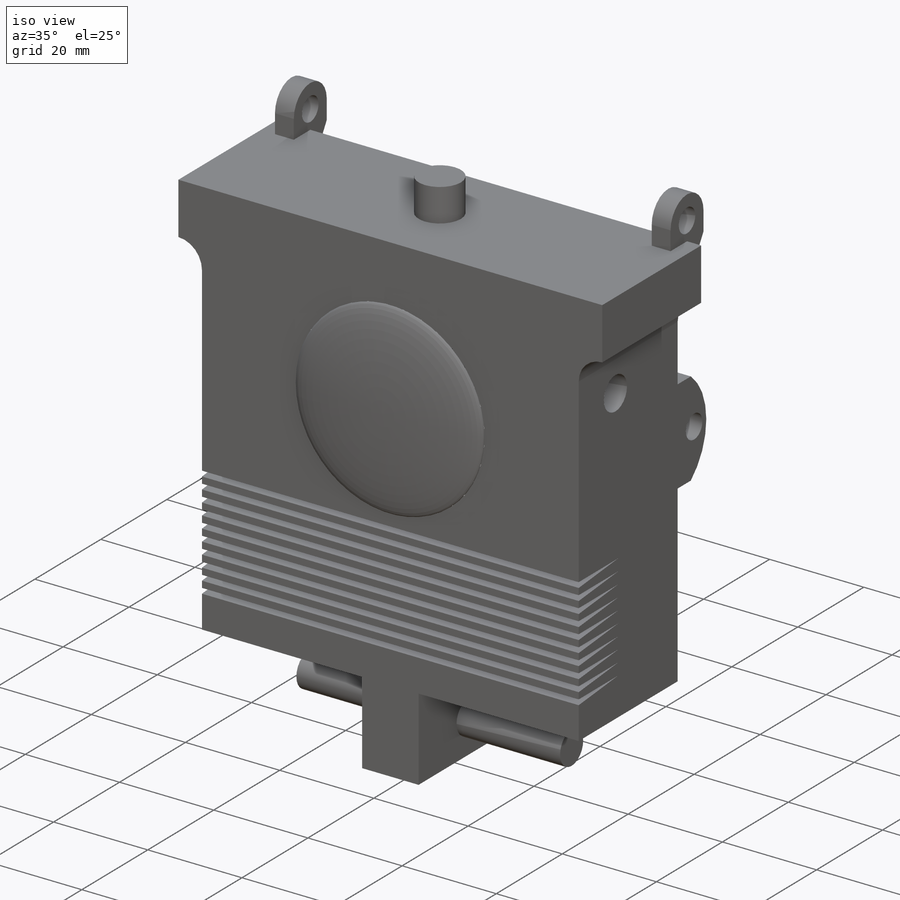
[diagram: iso view]
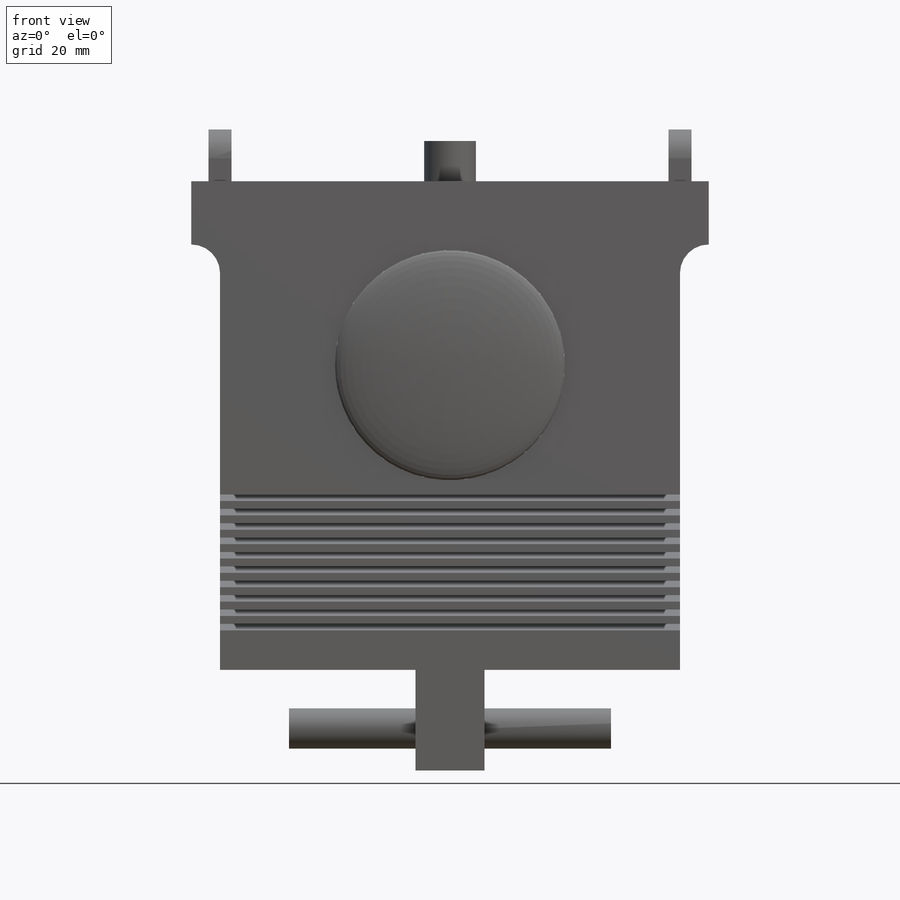
[diagram: front view]
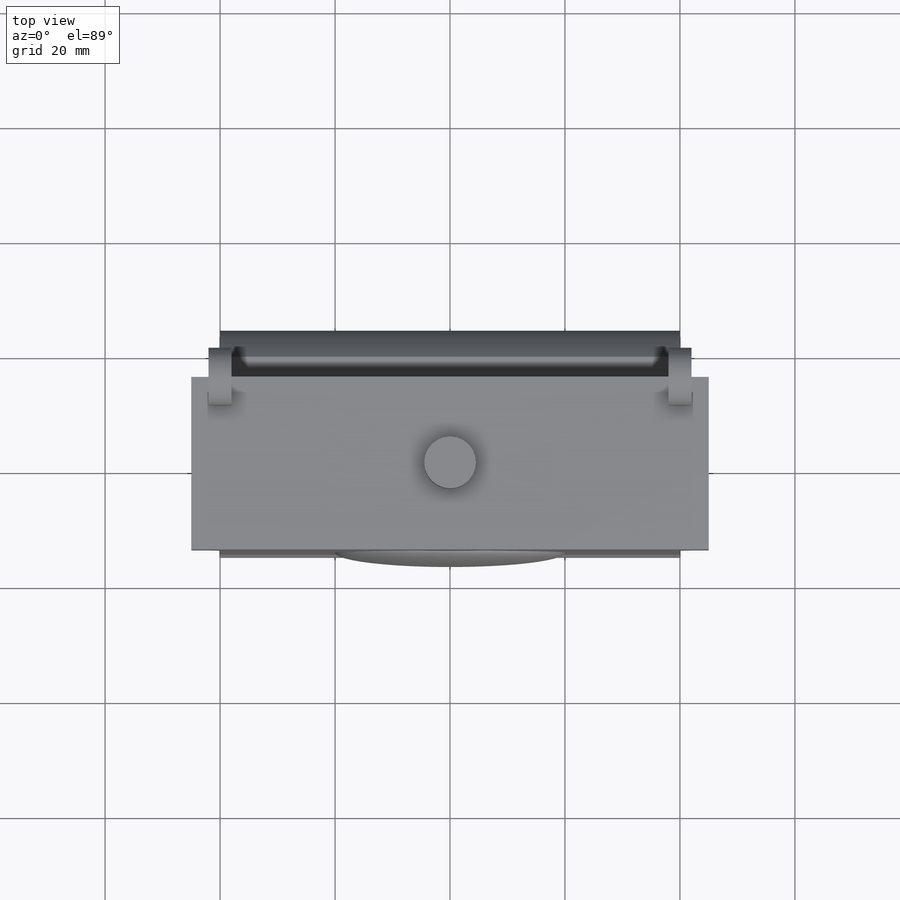
[diagram: top view]
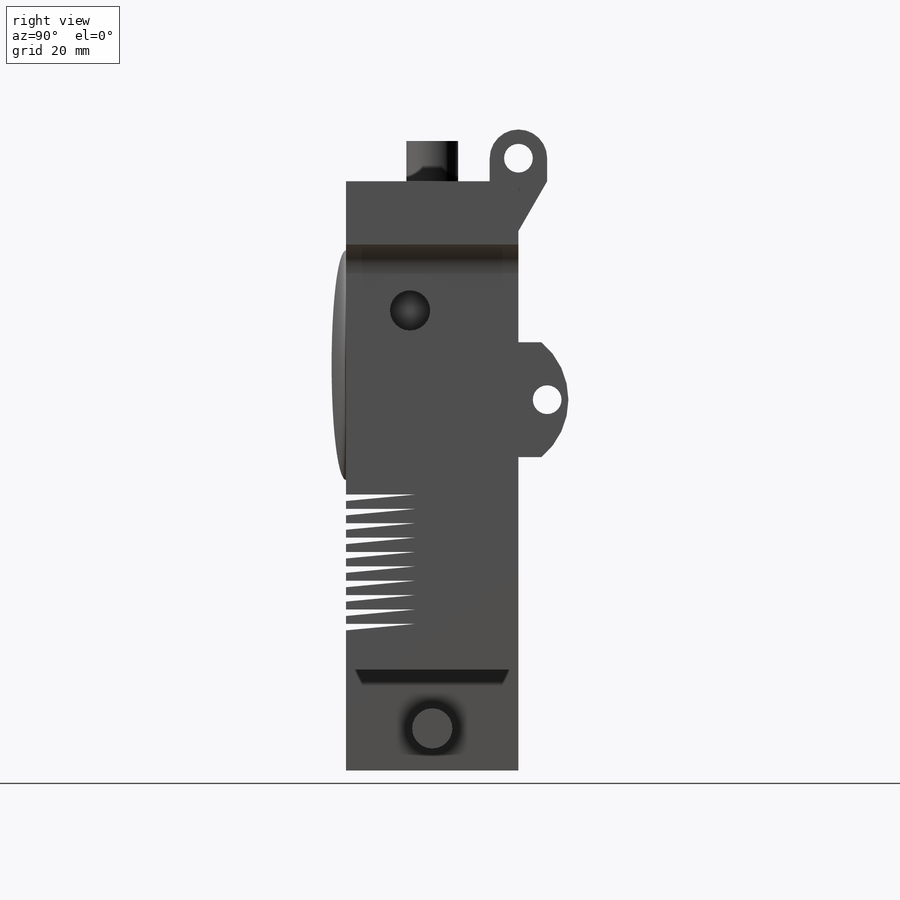
[diagram: right view]
SOLIDWORKS PART (.sldprt)
format: sldprt  version: not decoded by parser v0  size: 627,200 bytes
history: native  units: mm
features: sketch x14, extrude x7, cut_extrude x6, mirror x4, pattern_linear x2, material x1, dome x1 (+13 scaffold rows collapsed)
feature tree (48):
  scaffold x13  (default folders/planes/origin — collapsed)
  material  "Material <not specified>"
  sketch  "Sketch1"  dims[D1=30.0mm D2=90.0mm]
  extrude  "Boss-Extrude1"  Depth=85mm
  sketch  "Sketch2"  dims[D2=40.0mm D1=32.0mm]
  dome  "Dome1"
  sketch  "Sketch3"  dims[D1=17.5mm]
  extrude  "Boss-Extrude2"  Depth=12mm
  sketch  "Sketch4"  dims[D1=7.0mm D2=7.3mm]
  extrude  "Boss-Extrude3"  Depth=22mm
  mirror  "Mirror1"
  sketch  "Sketch5"  dims[c1.D2=9.5mm c1.D1=5.0mm c2.D2=16.0mm]
  cut_extrude  "Cut-Extrude1"  [1 undecoded]
  mirror  "Mirror2"
  sketch  "Sketch6"  dims[D1=7.0mm D2=6.5mm D3=18.86mm]
  cut_extrude  "Cut-Extrude2"  Depth=9mm
  mirror  "Mirror3"
  sketch  "Sketch7"  dims[D2=5.0mm D1=4.0mm]
  extrude  "Boss-Extrude4"  Depth=4mm
  sketch  "Sketch8"  dims[c1.D1=~7.556056mm c2.D1=30.0deg]
  extrude  "Boss-Extrude5"  [1 undecoded]
  sketch  "Sketch9"  dims[D1=5.0mm]
  cut_extrude  "Cut-Extrude3"  [1 undecoded]
  mirror  "Mirror4"
  sketch  "Sketch10"  dims[D2=13.0mm D1=22.0mm D3=20.0mm D4=4.0mm]
  extrude  "Boss-Extrude6"  [1 undecoded]
  sketch  "Sketch11"  dims[D1=5.0mm D2=5.0mm]
  cut_extrude  "Cut-Extrude4"  [1 undecoded]
  sketch  "Sketch12"  dims[D1=9.0mm]
  extrude  "Boss-Extrude7"  Depth=7mm
  sketch  "Sketch13"  dims[D1=12.0mm D2=1.12mm D3=8.0mm]
  cut_extrude  "Cut-Extrude5"  [1 undecoded]
  pattern_linear  "LPattern1"  Count1=10 Count2=1 Spacing1=2.5mm Spacing2=10mm
  sketch  "Sketch14"  dims[D1=10.0mm D2=4.5mm D3=2.0mm D4=2.0mm]
  cut_extrude  "Cut-Extrude6"  Depth=2mm
  pattern_linear  "LPattern2"  Count1=5 Count2=6 Spacing1=7mm Spacing2=13.25mm
decode coverage: 23 of 34 modeling features carry decoded parameters
note: ~ marks probable driven/reference dimensions
note: 6 parameter values undecoded
summary: no parameter record found for 6 features
note: suppression state not decoded; provenance and decode notes live in map.json
